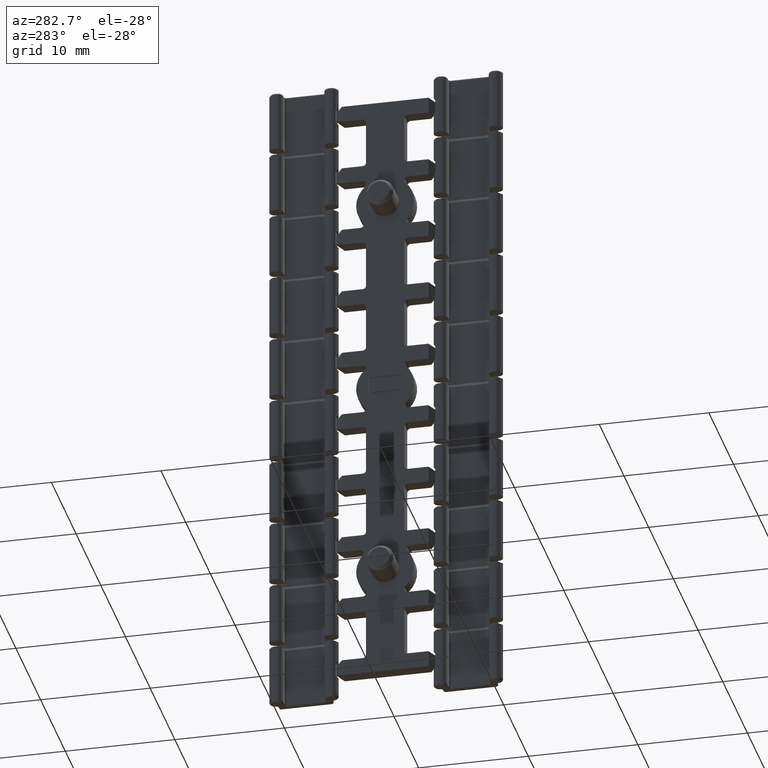
[diagram: clean part render]
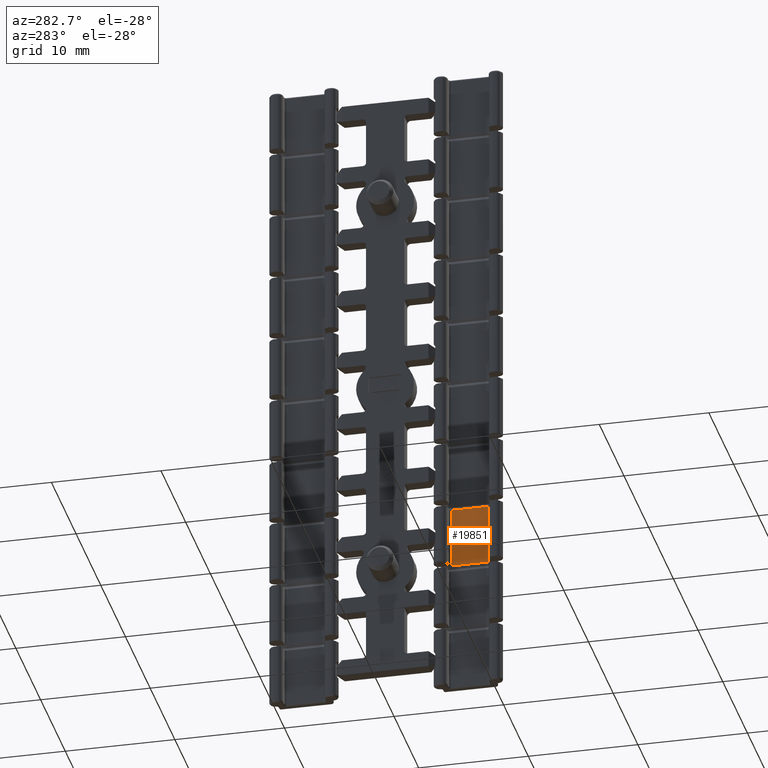
[diagram: same view with one face highlighted and labeled with its STEP entity id]
A machine part, auxiliary view. The second image highlights one B-rep face of the part: STEP entity #19851.
In plain terms, the highlighted planar face has unit normal (-1, -0, 0).
Its self-contained STEP definition (entity closure, byte-faithful):
#1090 = CARTESIAN_POINT ( 'NONE',  ( 47.81237692440216600, 94.28499999999999700, -1.878800931457700800 ) ) ;
#14799 = VERTEX_POINT ( 'NONE', #1090 ) ;
#17910 = EDGE_CURVE ( 'NONE', #17930, #17932, #29851, .T. ) ;
#17930 = VERTEX_POINT ( 'NONE', #29881 ) ;
#17932 = VERTEX_POINT ( 'NONE', #29916 ) ;
#19839 = EDGE_CURVE ( 'NONE', #14799, #17932, #37234, .T. ) ;
#19840 = VERTEX_POINT ( 'NONE', #37229 ) ;
#19842 = EDGE_LOOP ( 'NONE', ( #19852, #19893, #19892, #19895 ) ) ;
#19851 = ADVANCED_FACE ( 'NONE', ( #37280 ), #37231, .T. ) ;
#19852 = ORIENTED_EDGE ( 'NONE', *, *, #19891, .F. ) ;
#19853 = EDGE_CURVE ( 'NONE', #17930, #19840, #37199, .T. ) ;
#19891 = EDGE_CURVE ( 'NONE', #14799, #19840, #37368, .T. ) ;
#19892 = ORIENTED_EDGE ( 'NONE', *, *, #17910, .F. ) ;
#19893 = ORIENTED_EDGE ( 'NONE', *, *, #19839, .T. ) ;
#19895 = ORIENTED_EDGE ( 'NONE', *, *, #19853, .T. ) ;
#29820 = DIRECTION ( 'NONE',  ( 0.0000000000000000000, 1.000000000000000000, -1.642655475521470000E-028 ) ) ;
#29821 = VECTOR ( 'NONE', #29820, 1000.000000000000000 ) ;
#29822 = CARTESIAN_POINT ( 'NONE',  ( 47.81237692440226500, 95.76000000000000500, -7.478800931457802100 ) ) ;
#29851 = LINE ( 'NONE', #29822, #29821 ) ;
#29881 = CARTESIAN_POINT ( 'NONE',  ( 47.81237692440226500, 90.93500000000000200, -7.478800931457802100 ) ) ;
#29916 = CARTESIAN_POINT ( 'NONE',  ( 47.81237692440223000, 94.28499999999999700, -7.478800931457814500 ) ) ;
#37199 = LINE ( 'NONE', #37258, #37257 ) ;
#37221 = DIRECTION ( 'NONE',  ( -1.582853921550299100E-028, 6.123233995720649900E-017, -1.000000000000000000 ) ) ;
#37222 = VECTOR ( 'NONE', #37221, 1000.000000000000000 ) ;
#37223 = CARTESIAN_POINT ( 'NONE',  ( 47.81237692440218000, 94.28499999999999700, -53.45380093145750100 ) ) ;
#37225 = CARTESIAN_POINT ( 'NONE',  ( 47.81237692440096500, 142.4680127006220400, -53.45380093145750100 ) ) ;
#37229 = CARTESIAN_POINT ( 'NONE',  ( 47.81237692440230800, 90.93500000000000200, -1.878800931457702500 ) ) ;
#37231 = PLANE ( 'NONE',  #37275 ) ;
#37234 = LINE ( 'NONE', #37223, #37222 ) ;
#37256 = DIRECTION ( 'NONE',  ( 1.551882100571859600E-028, 6.123233995752850200E-017, 1.000000000000000000 ) ) ;
#37257 = VECTOR ( 'NONE', #37256, 1000.000000000000000 ) ;
#37258 = CARTESIAN_POINT ( 'NONE',  ( 47.81237692440226500, 90.93500000000000200, -1.878800931457695700 ) ) ;
#37263 = DIRECTION ( 'NONE',  ( 2.529041108016070100E-014, -1.000000000000000000, 0.0000000000000000000 ) ) ;
#37264 = DIRECTION ( 'NONE',  ( -1.000000000000000000, -2.529041108016070100E-014, 1.567368011061120000E-028 ) ) ;
#37275 = AXIS2_PLACEMENT_3D ( 'NONE', #37225, #37264, #37263 ) ;
#37280 = FACE_OUTER_BOUND ( 'NONE', #19842, .T. ) ;
#37364 = DIRECTION ( 'NONE',  ( -1.124819836994257000E-032, -1.000000000000000000, -6.123233995719869600E-017 ) ) ;
#37365 = VECTOR ( 'NONE', #37364, 1000.000000000000000 ) ;
#37366 = CARTESIAN_POINT ( 'NONE',  ( 47.81237692440216600, 92.66000000000001100, -1.878800931457700800 ) ) ;
#37368 = LINE ( 'NONE', #37366, #37365 ) ;